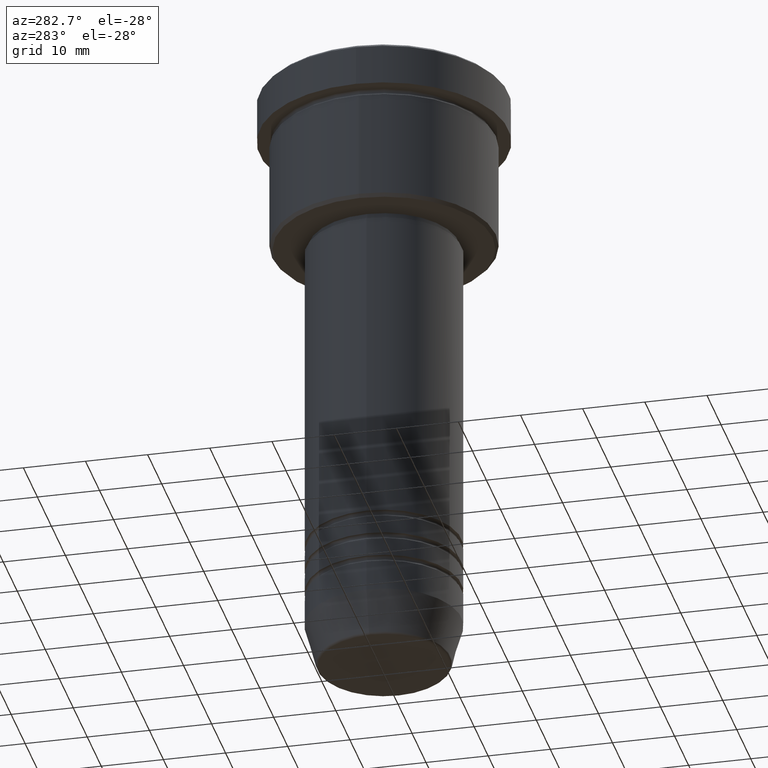
[diagram: clean part render]
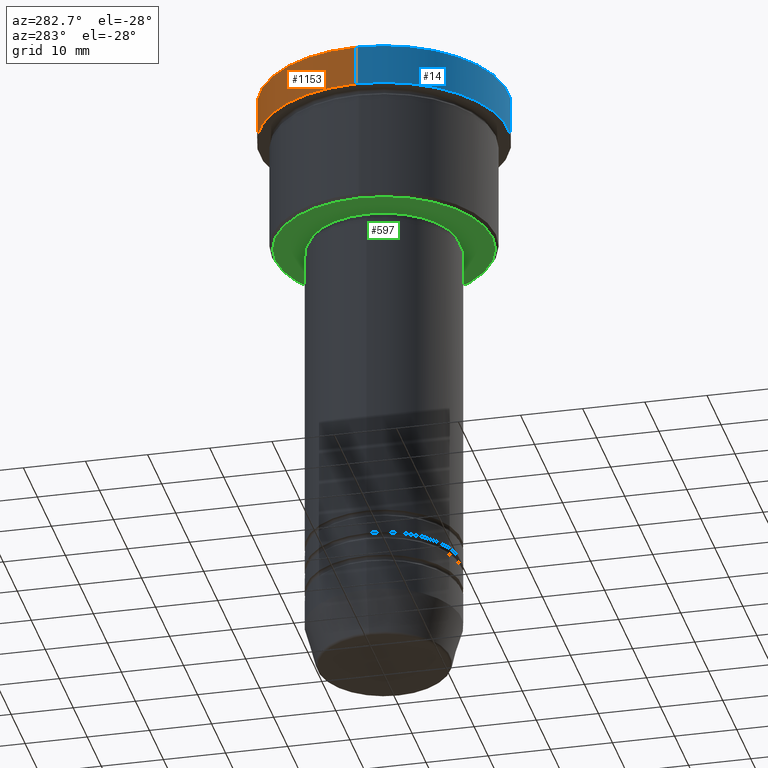
[diagram: same view with three faces highlighted in distinct colors, each labeled with its STEP entity id]
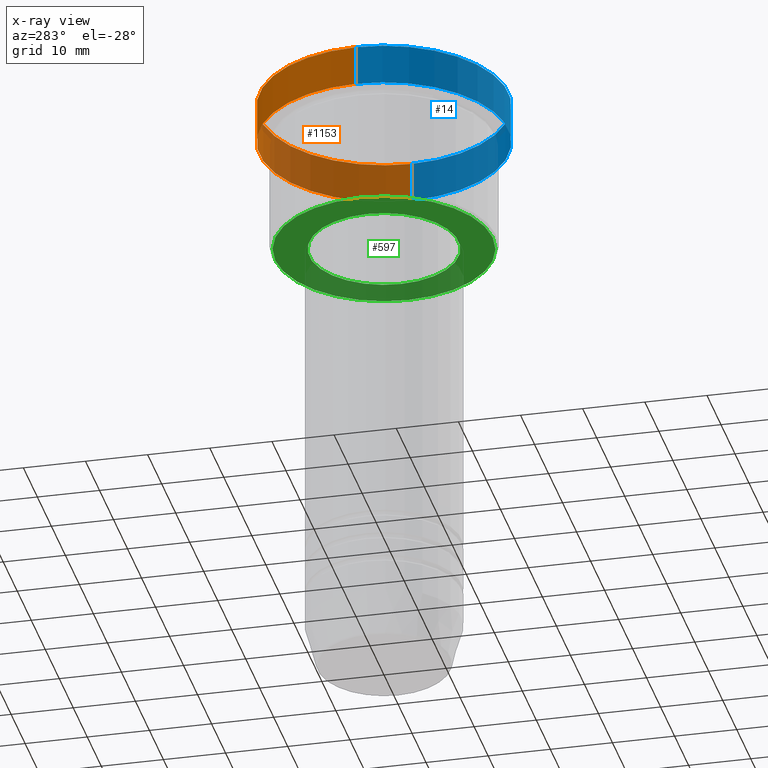
[diagram: x-ray of the same camera — body ghosted, the three highlighted faces saturated]
A machine part, auxiliary view with three faces highlighted in distinct colors.
The next image is the same camera in x-ray (body ghosted, the three faces saturated) — at least one of them is partly hidden behind the body in this view.
Their STEP definitions:

[orange] entity #1153 — the highlighted cylindrical surface (partial cylindrical patch) has radius 20 mm, axis along (-0, -0, 1).
#100 = DIRECTION ( 'NONE',  ( 0.000000000000000000, 0.000000000000000000, -1.000000000000000000 ) ) ;
#109 = EDGE_CURVE ( 'NONE', #278, #1154, #640, .T. ) ;
#161 = CARTESIAN_POINT ( 'NONE',  ( 20.00000000000000000, 0.000000000000000000, -0.4999999999999831246 ) ) ;
#190 = ORIENTED_EDGE ( 'NONE', *, *, #742, .T. ) ;
#263 = CARTESIAN_POINT ( 'NONE',  ( 0.000000000000000000, 0.000000000000000000, -0.4999999999999831246 ) ) ;
#278 = VERTEX_POINT ( 'NONE', #719 ) ;
#297 = DIRECTION ( 'NONE',  ( 1.000000000000000000, 0.000000000000000000, 0.000000000000000000 ) ) ;
#301 = ORIENTED_EDGE ( 'NONE', *, *, #575, .T. ) ;
#372 = CARTESIAN_POINT ( 'NONE',  ( -20.00000000000000000, 2.449293598294706513E-15, -6.999999999999995559 ) ) ;
#385 = CARTESIAN_POINT ( 'NONE',  ( 0.000000000000000000, 0.000000000000000000, 0.000000000000000000 ) ) ;
#440 = ORIENTED_EDGE ( 'NONE', *, *, #109, .T. ) ;
#442 = CARTESIAN_POINT ( 'NONE',  ( 20.00000000000000000, 0.000000000000000000, 0.000000000000000000 ) ) ;
#449 = EDGE_CURVE ( 'NONE', #278, #1076, #903, .T. ) ;
#462 = VERTEX_POINT ( 'NONE', #767 ) ;
#494 = VECTOR ( 'NONE', #588, 1000.000000000000000 ) ;
#520 = LINE ( 'NONE', #605, #494 ) ;
#575 = EDGE_CURVE ( 'NONE', #1154, #462, #520, .T. ) ;
#588 = DIRECTION ( 'NONE',  ( -0.000000000000000000, -0.000000000000000000, 1.000000000000000000 ) ) ;
#605 = CARTESIAN_POINT ( 'NONE',  ( -20.00000000000000000, 2.449293598294706513E-15, 0.000000000000000000 ) ) ;
#622 = AXIS2_PLACEMENT_3D ( 'NONE', #1037, #954, #752 ) ;
#640 = CIRCLE ( 'NONE', #622, 20.00000000000000000 ) ;
#661 = CIRCLE ( 'NONE', #758, 20.00000000000000000 ) ;
#719 = CARTESIAN_POINT ( 'NONE',  ( 20.00000000000000000, 0.000000000000000000, -6.999999999999995559 ) ) ;
#742 = EDGE_CURVE ( 'NONE', #462, #1076, #661, .T. ) ;
#745 = DIRECTION ( 'NONE',  ( -0.000000000000000000, -0.000000000000000000, 1.000000000000000000 ) ) ;
#752 = DIRECTION ( 'NONE',  ( 1.000000000000000000, 0.000000000000000000, 0.000000000000000000 ) ) ;
#758 = AXIS2_PLACEMENT_3D ( 'NONE', #263, #100, #297 ) ;
#767 = CARTESIAN_POINT ( 'NONE',  ( -20.00000000000000000, 2.449293598294706513E-15, -0.4999999999999831246 ) ) ;
#791 = VECTOR ( 'NONE', #810, 1000.000000000000000 ) ;
#810 = DIRECTION ( 'NONE',  ( -0.000000000000000000, -0.000000000000000000, 1.000000000000000000 ) ) ;
#815 = FACE_OUTER_BOUND ( 'NONE', #899, .T. ) ;
#899 = EDGE_LOOP ( 'NONE', ( #440, #301, #190, #1063 ) ) ;
#903 = LINE ( 'NONE', #442, #791 ) ;
#925 = DIRECTION ( 'NONE',  ( 1.000000000000000000, 0.000000000000000000, 0.000000000000000000 ) ) ;
#935 = AXIS2_PLACEMENT_3D ( 'NONE', #385, #745, #925 ) ;
#954 = DIRECTION ( 'NONE',  ( -0.000000000000000000, -0.000000000000000000, 1.000000000000000000 ) ) ;
#1037 = CARTESIAN_POINT ( 'NONE',  ( 0.000000000000000000, 0.000000000000000000, -6.999999999999995559 ) ) ;
#1063 = ORIENTED_EDGE ( 'NONE', *, *, #449, .F. ) ;
#1076 = VERTEX_POINT ( 'NONE', #161 ) ;
#1084 = CYLINDRICAL_SURFACE ( 'NONE', #935, 20.00000000000000000 ) ;
#1153 = ADVANCED_FACE ( 'NONE', ( #815 ), #1084, .T. ) ;
#1154 = VERTEX_POINT ( 'NONE', #372 ) ;

[blue] entity #14 — the highlighted cylindrical surface (partial cylindrical patch) has radius 20 mm, axis along (-0, -0, 1).
#14 = ADVANCED_FACE ( 'NONE', ( #291 ), #279, .T. ) ;
#161 = CARTESIAN_POINT ( 'NONE',  ( 20.00000000000000000, 0.000000000000000000, -0.4999999999999831246 ) ) ;
#231 = DIRECTION ( 'NONE',  ( -0.000000000000000000, -0.000000000000000000, 1.000000000000000000 ) ) ;
#278 = VERTEX_POINT ( 'NONE', #719 ) ;
#279 = CYLINDRICAL_SURFACE ( 'NONE', #472, 20.00000000000000000 ) ;
#291 = FACE_OUTER_BOUND ( 'NONE', #1105, .T. ) ;
#295 = DIRECTION ( 'NONE',  ( 1.000000000000000000, 0.000000000000000000, 0.000000000000000000 ) ) ;
#372 = CARTESIAN_POINT ( 'NONE',  ( -20.00000000000000000, 2.449293598294706513E-15, -6.999999999999995559 ) ) ;
#399 = CIRCLE ( 'NONE', #1052, 20.00000000000000000 ) ;
#422 = EDGE_CURVE ( 'NONE', #1154, #278, #712, .T. ) ;
#442 = CARTESIAN_POINT ( 'NONE',  ( 20.00000000000000000, 0.000000000000000000, 0.000000000000000000 ) ) ;
#449 = EDGE_CURVE ( 'NONE', #278, #1076, #903, .T. ) ;
#462 = VERTEX_POINT ( 'NONE', #767 ) ;
#472 = AXIS2_PLACEMENT_3D ( 'NONE', #724, #648, #295 ) ;
#473 = DIRECTION ( 'NONE',  ( 1.000000000000000000, 0.000000000000000000, 0.000000000000000000 ) ) ;
#494 = VECTOR ( 'NONE', #588, 1000.000000000000000 ) ;
#520 = LINE ( 'NONE', #605, #494 ) ;
#530 = ORIENTED_EDGE ( 'NONE', *, *, #751, .T. ) ;
#575 = EDGE_CURVE ( 'NONE', #1154, #462, #520, .T. ) ;
#588 = DIRECTION ( 'NONE',  ( -0.000000000000000000, -0.000000000000000000, 1.000000000000000000 ) ) ;
#600 = ORIENTED_EDGE ( 'NONE', *, *, #575, .F. ) ;
#605 = CARTESIAN_POINT ( 'NONE',  ( -20.00000000000000000, 2.449293598294706513E-15, 0.000000000000000000 ) ) ;
#648 = DIRECTION ( 'NONE',  ( -0.000000000000000000, -0.000000000000000000, 1.000000000000000000 ) ) ;
#712 = CIRCLE ( 'NONE', #1133, 20.00000000000000000 ) ;
#719 = CARTESIAN_POINT ( 'NONE',  ( 20.00000000000000000, 0.000000000000000000, -6.999999999999995559 ) ) ;
#724 = CARTESIAN_POINT ( 'NONE',  ( 0.000000000000000000, 0.000000000000000000, 0.000000000000000000 ) ) ;
#748 = CARTESIAN_POINT ( 'NONE',  ( 0.000000000000000000, 0.000000000000000000, -0.4999999999999831246 ) ) ;
#751 = EDGE_CURVE ( 'NONE', #1076, #462, #399, .T. ) ;
#767 = CARTESIAN_POINT ( 'NONE',  ( -20.00000000000000000, 2.449293598294706513E-15, -0.4999999999999831246 ) ) ;
#791 = VECTOR ( 'NONE', #810, 1000.000000000000000 ) ;
#810 = DIRECTION ( 'NONE',  ( -0.000000000000000000, -0.000000000000000000, 1.000000000000000000 ) ) ;
#819 = ORIENTED_EDGE ( 'NONE', *, *, #422, .T. ) ;
#901 = ORIENTED_EDGE ( 'NONE', *, *, #449, .T. ) ;
#903 = LINE ( 'NONE', #442, #791 ) ;
#918 = DIRECTION ( 'NONE',  ( 1.000000000000000000, 0.000000000000000000, 0.000000000000000000 ) ) ;
#1032 = CARTESIAN_POINT ( 'NONE',  ( 0.000000000000000000, 0.000000000000000000, -6.999999999999995559 ) ) ;
#1052 = AXIS2_PLACEMENT_3D ( 'NONE', #748, #1110, #918 ) ;
#1076 = VERTEX_POINT ( 'NONE', #161 ) ;
#1105 = EDGE_LOOP ( 'NONE', ( #600, #819, #901, #530 ) ) ;
#1110 = DIRECTION ( 'NONE',  ( 0.000000000000000000, 0.000000000000000000, -1.000000000000000000 ) ) ;
#1133 = AXIS2_PLACEMENT_3D ( 'NONE', #1032, #231, #473 ) ;
#1154 = VERTEX_POINT ( 'NONE', #372 ) ;

[green] entity #597 — the highlighted planar face has unit normal (0, 0, -1).
#15 = ORIENTED_EDGE ( 'NONE', *, *, #621, .T. ) ;
#16 = VERTEX_POINT ( 'NONE', #911 ) ;
#41 = DIRECTION ( 'NONE',  ( 0.000000000000000000, 0.000000000000000000, -1.000000000000000000 ) ) ;
#51 = CIRCLE ( 'NONE', #1017, 17.50000000000000000 ) ;
#52 = DIRECTION ( 'NONE',  ( -1.000000000000000000, 0.000000000000000000, 0.000000000000000000 ) ) ;
#60 = FACE_OUTER_BOUND ( 'NONE', #880, .T. ) ;
#137 = CARTESIAN_POINT ( 'NONE',  ( 0.000000000000000000, 0.000000000000000000, -25.99999999999999645 ) ) ;
#145 = DIRECTION ( 'NONE',  ( 0.000000000000000000, 0.000000000000000000, -1.000000000000000000 ) ) ;
#211 = AXIS2_PLACEMENT_3D ( 'NONE', #1028, #145, #52 ) ;
#270 = CIRCLE ( 'NONE', #211, 17.50000000000000000 ) ;
#360 = EDGE_LOOP ( 'NONE', ( #799, #973 ) ) ;
#375 = DIRECTION ( 'NONE',  ( -0.000000000000000000, -0.000000000000000000, 1.000000000000000000 ) ) ;
#390 = CARTESIAN_POINT ( 'NONE',  ( -12.00000000000000000, 1.469576158976823947E-15, -25.99999999999999645 ) ) ;
#398 = DIRECTION ( 'NONE',  ( -0.000000000000000000, -0.000000000000000000, 1.000000000000000000 ) ) ;
#411 = DIRECTION ( 'NONE',  ( -1.000000000000000000, 0.000000000000000000, -0.000000000000000000 ) ) ;
#421 = CIRCLE ( 'NONE', #627, 12.00000000000000000 ) ;
#469 = DIRECTION ( 'NONE',  ( -1.000000000000000000, 0.000000000000000000, 0.000000000000000000 ) ) ;
#503 = EDGE_CURVE ( 'NONE', #16, #804, #778, .T. ) ;
#524 = ORIENTED_EDGE ( 'NONE', *, *, #774, .T. ) ;
#550 = AXIS2_PLACEMENT_3D ( 'NONE', #137, #398, #762 ) ;
#557 = DIRECTION ( 'NONE',  ( 0.000000000000000000, 0.000000000000000000, -1.000000000000000000 ) ) ;
#587 = AXIS2_PLACEMENT_3D ( 'NONE', #862, #41, #411 ) ;
#597 = ADVANCED_FACE ( 'NONE', ( #60, #787 ), #692, .T. ) ;
#603 = VERTEX_POINT ( 'NONE', #635 ) ;
#621 = EDGE_CURVE ( 'NONE', #1068, #603, #51, .T. ) ;
#627 = AXIS2_PLACEMENT_3D ( 'NONE', #652, #375, #1094 ) ;
#635 = CARTESIAN_POINT ( 'NONE',  ( 17.50000000000000000, 0.000000000000000000, -25.99999999999999645 ) ) ;
#652 = CARTESIAN_POINT ( 'NONE',  ( 0.000000000000000000, 0.000000000000000000, -25.99999999999999645 ) ) ;
#692 = PLANE ( 'NONE',  #587 ) ;
#762 = DIRECTION ( 'NONE',  ( 1.000000000000000000, 0.000000000000000000, 0.000000000000000000 ) ) ;
#774 = EDGE_CURVE ( 'NONE', #603, #1068, #270, .T. ) ;
#778 = CIRCLE ( 'NONE', #550, 12.00000000000000000 ) ;
#787 = FACE_BOUND ( 'NONE', #360, .T. ) ;
#799 = ORIENTED_EDGE ( 'NONE', *, *, #503, .T. ) ;
#804 = VERTEX_POINT ( 'NONE', #390 ) ;
#832 = EDGE_CURVE ( 'NONE', #804, #16, #421, .T. ) ;
#862 = CARTESIAN_POINT ( 'NONE',  ( 0.000000000000000000, 18.00000000000000000, -25.99999999999999645 ) ) ;
#880 = EDGE_LOOP ( 'NONE', ( #524, #15 ) ) ;
#906 = CARTESIAN_POINT ( 'NONE',  ( -17.50000000000000000, 2.173748068486551641E-15, -25.99999999999999645 ) ) ;
#911 = CARTESIAN_POINT ( 'NONE',  ( 12.00000000000000000, 0.000000000000000000, -25.99999999999999645 ) ) ;
#973 = ORIENTED_EDGE ( 'NONE', *, *, #832, .T. ) ;
#1017 = AXIS2_PLACEMENT_3D ( 'NONE', #1100, #557, #469 ) ;
#1028 = CARTESIAN_POINT ( 'NONE',  ( 0.000000000000000000, 0.000000000000000000, -25.99999999999999645 ) ) ;
#1068 = VERTEX_POINT ( 'NONE', #906 ) ;
#1094 = DIRECTION ( 'NONE',  ( 1.000000000000000000, 0.000000000000000000, 0.000000000000000000 ) ) ;
#1100 = CARTESIAN_POINT ( 'NONE',  ( 0.000000000000000000, 0.000000000000000000, -25.99999999999999645 ) ) ;